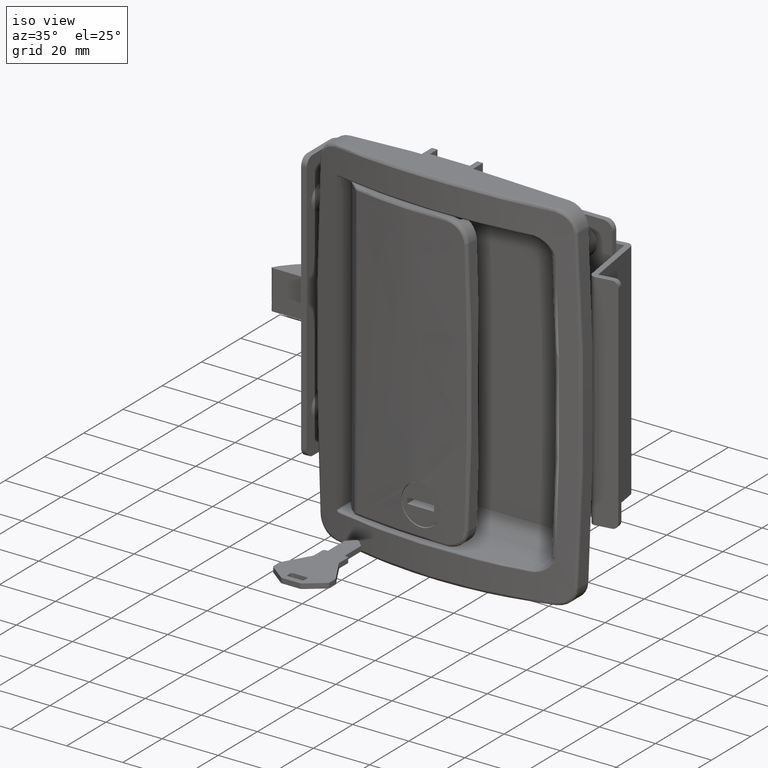
[diagram: clean part render]
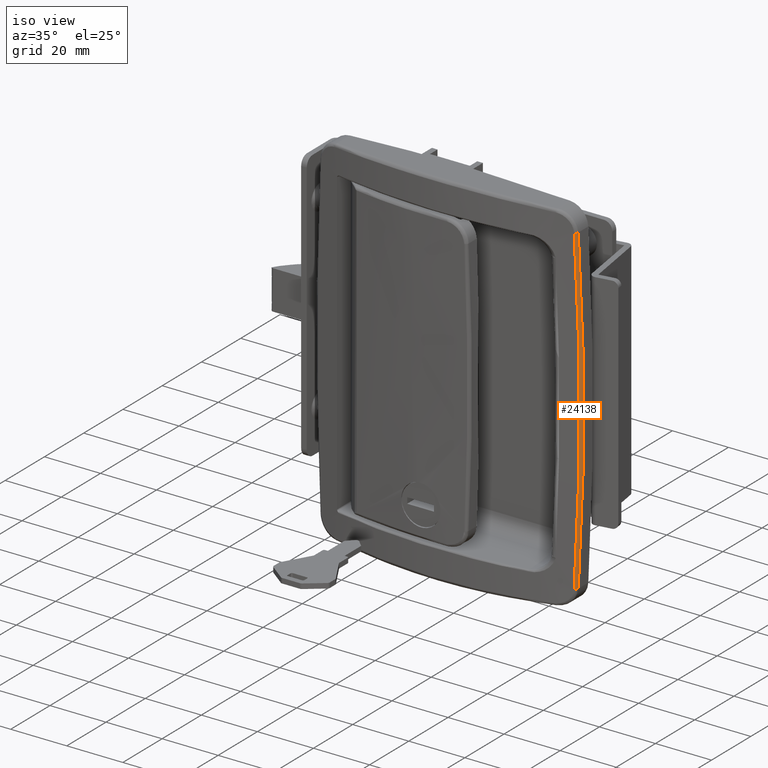
[diagram: same view with one face highlighted and labeled with its STEP entity id]
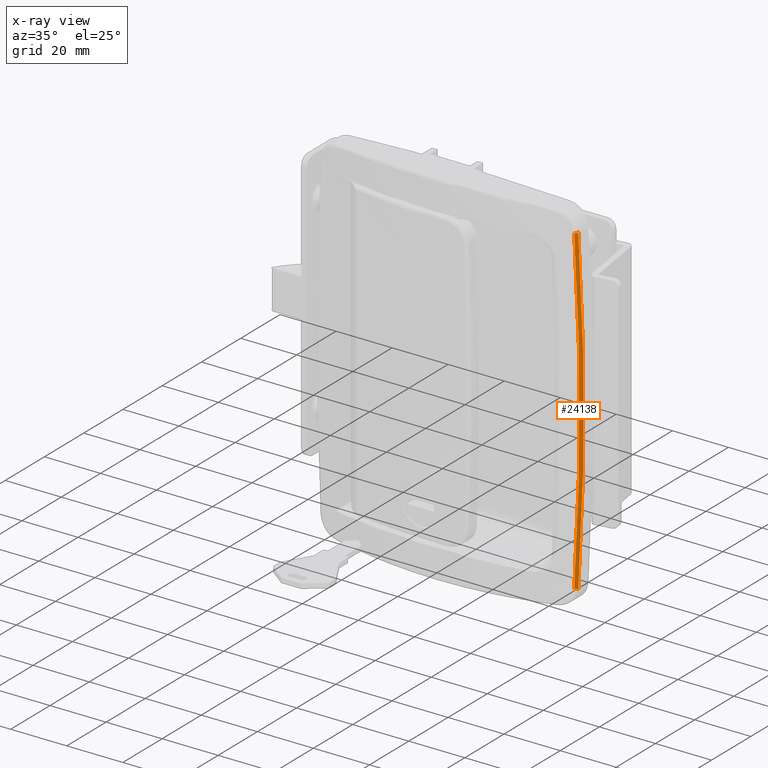
[diagram: x-ray of the same camera — body ghosted, the highlighted face saturated]
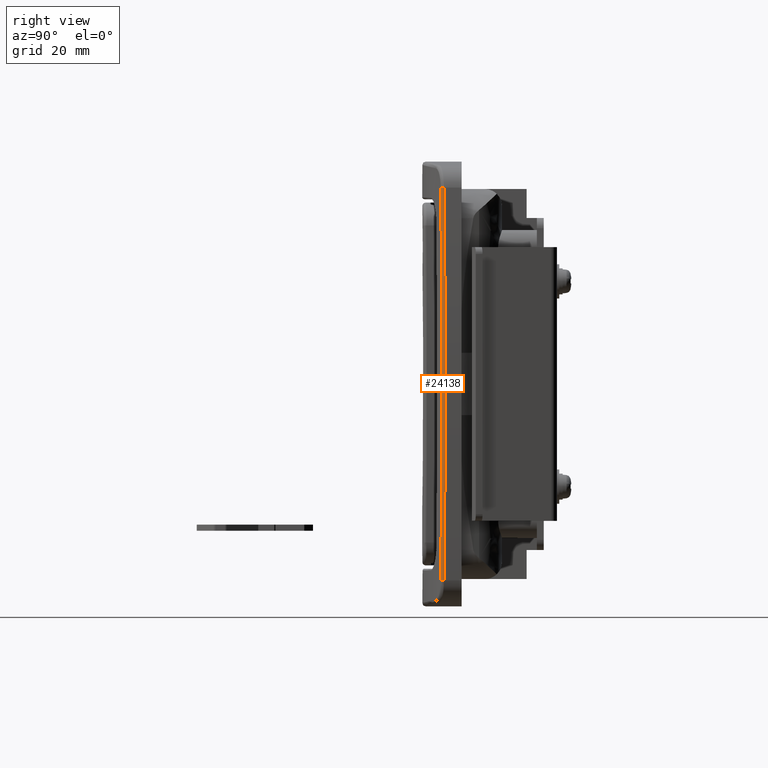
[diagram: same view with one face highlighted and labeled with its STEP entity id]
A machine part, iso view. The second image highlights one B-rep face of the part: STEP entity #24138.
The next image is the same camera in x-ray: the body ghosted, the highlighted face saturated — about 0% of this face is hidden behind the body in this view.
A second angle (right view) of the same face is appended — the face is thin or edge-on in the first view.
In plain terms, the highlighted face is a freeform B-spline surface patch.
Its self-contained STEP definition (entity closure, byte-faithful):
#23844=CARTESIAN_POINT('',(92.589841533773708,-5.102077315700139,57.327200999655702));
#23845=VERTEX_POINT('',#23844);
#23846=CARTESIAN_POINT('',(93.352146958775407,-4.130335608736100,57.384585585241012));
#23847=VERTEX_POINT('',#23846);
#23848=CARTESIAN_POINT('',(92.589841533773708,-5.102077315700139,57.327200999655702));
#23849=CARTESIAN_POINT('',(92.738106249284328,-5.066336422271850,57.336222179149573));
#23850=CARTESIAN_POINT('',(92.979141792422311,-4.944038598098099,57.351784299607402));
#23851=CARTESIAN_POINT('',(93.271507100608133,-4.601890599640898,57.373366444998432));
#23852=CARTESIAN_POINT('',(93.352763812862236,-4.310933547501303,57.382099469351623));
#23853=CARTESIAN_POINT('',(93.352146958775407,-4.130335608736100,57.384585585241012));
#23854=B_SPLINE_CURVE_WITH_KNOTS('',3,(#23848,#23849,#23850,#23851,#23852,#23853),.UNSPECIFIED.,.F.,.U.,(4,1,1,4),(0.000000606098864,0.458247604693604,0.791453894513084,1.332997292014657),.UNSPECIFIED.);
#23855=EDGE_CURVE('',#23845,#23847,#23854,.T.);
#24044=CARTESIAN_POINT('',(92.550730393208298,-5.111576706780928,57.900093716901353));
#24045=CARTESIAN_POINT('',(92.561771986878853,-5.108894960558557,57.709008086178713));
#24046=CARTESIAN_POINT('',(92.572813584776668,-5.106213213309484,57.517922382299261));
#24047=CARTESIAN_POINT('',(93.688036772157034,-4.835351446512850,38.217889025215577));
#24048=CARTESIAN_POINT('',(94.238761806418267,-4.693763688061156,19.108945974016223));
#24049=CARTESIAN_POINT('',(94.238761806422232,-4.693763688060288,-19.108945974276683));
#24050=CARTESIAN_POINT('',(93.688036769249166,-4.835351447225407,-38.217889025298049));
#24051=CARTESIAN_POINT('',(92.572813584807932,-5.106213213301824,-57.517922382562084));
#24052=CARTESIAN_POINT('',(92.561771986939178,-5.108894960543773,-57.709008086443880));
#24053=CARTESIAN_POINT('',(92.550730393297712,-5.111576706759021,-57.900093717168858));
#24054=CARTESIAN_POINT('',(92.553720418474271,-5.110850963265343,57.900283202382525));
#24055=CARTESIAN_POINT('',(92.564761996911017,-5.108169031934798,57.709195040759610));
#24056=CARTESIAN_POINT('',(92.575803577463731,-5.105487100090323,57.518106842518755));
#24057=CARTESIAN_POINT('',(93.691014136990589,-4.834609330497239,38.218009771951387));
#24058=CARTESIAN_POINT('',(94.241732770989458,-4.693013865934754,19.109006423076877));
#24059=CARTESIAN_POINT('',(94.241732770993394,-4.693013865933822,-19.109006423337334));
#24060=CARTESIAN_POINT('',(93.691014134081598,-4.834609331206957,-38.218009772033845));
#24061=CARTESIAN_POINT('',(92.575803577494995,-5.105487100082691,-57.518106842781592));
#24062=CARTESIAN_POINT('',(92.564761996971441,-5.108169031920077,-57.709195041024849));
#24063=CARTESIAN_POINT('',(92.553720418563714,-5.110850963243521,-57.900283202650044));
#24064=CARTESIAN_POINT('',(93.319721106633835,-4.924926102129839,57.948826607895427));
#24065=CARTESIAN_POINT('',(93.330739947449871,-4.922201321634780,57.757088889008969));
#24066=CARTESIAN_POINT('',(93.341758250616948,-4.919476674091579,57.565360525696647));
#24067=CARTESIAN_POINT('',(94.451844407395825,-4.644970384516872,38.248865168180615));
#24068=CARTESIAN_POINT('',(94.999999999999957,-4.501639807979108,19.124434591481236));
#24069=CARTESIAN_POINT('',(94.999999999999957,-4.501639807962532,-19.124434591741664));
#24070=CARTESIAN_POINT('',(94.451844404205389,-4.644970384500883,-38.248865168257943));
#24071=CARTESIAN_POINT('',(93.341758250651097,-4.919476674091186,-57.565360525959505));
#24072=CARTESIAN_POINT('',(93.330739947515980,-4.922201321634549,-57.757088889274236));
#24073=CARTESIAN_POINT('',(93.319721106731933,-4.924926102129770,-57.948826608163074));
#24074=CARTESIAN_POINT('',(93.319160335619131,-4.135017494093386,57.958472091987460));
#24075=CARTESIAN_POINT('',(93.330154988680178,-4.132349576518281,57.767192038620593));
#24076=CARTESIAN_POINT('',(93.341149644007345,-4.129681658393316,57.575911945830590));
#24077=CARTESIAN_POINT('',(94.451621529006530,-3.860219089435609,38.256419075590493));
#24078=CARTESIAN_POINT('',(94.999999999999588,-3.719363635378281,19.128211138326115));
#24079=CARTESIAN_POINT('',(95.000000000000284,-3.719363635361705,-19.128211138586540));
#24080=CARTESIAN_POINT('',(94.451621529021253,-3.860219089096391,-38.256419075856556));
#24081=CARTESIAN_POINT('',(93.341149644009377,-4.129681658396176,-57.575911946091551));
#24082=CARTESIAN_POINT('',(93.330154988682054,-4.132349576524534,-57.767192038882058));
#24083=CARTESIAN_POINT('',(93.319160335620850,-4.135017494103035,-57.958472092249416));
#24084=CARTESIAN_POINT('',(93.319157982445660,-4.131702786505672,57.958512567504421));
#24085=CARTESIAN_POINT('',(93.330152533946929,-4.129035025996720,57.767234435690739));
#24086=CARTESIAN_POINT('',(93.341147089974896,-4.126367264389365,57.575956225121963));
#24087=CARTESIAN_POINT('',(94.451620591367686,-3.856917678116596,38.256450854519123));
#24088=CARTESIAN_POINT('',(94.999999999999616,-3.716068608781841,19.128227045524547));
#24089=CARTESIAN_POINT('',(95.000000000000327,-3.716068608765267,-19.128227045784971));
#24090=CARTESIAN_POINT('',(94.451620591395894,-3.856917677776020,-38.256450854785982));
#24091=CARTESIAN_POINT('',(93.341147089976786,-4.126367264392239,-57.575956225382910));
#24092=CARTESIAN_POINT('',(93.330152533948521,-4.129035026003002,-57.767234435952190));
#24093=CARTESIAN_POINT('',(93.319157982447067,-4.131702786515366,-57.958512567766441));
#24101=(BOUNDED_SURFACE()B_SPLINE_SURFACE(3,2,((#24044,#24054,#24064,#24074,#24084),(#24045,#24055,#24065,#24075,#24085),(#24046,#24056,#24066,#24076,#24086),(#24047,#24057,#24067,#24077,#24087),(#24048,#24058,#24068,#24078,#24088),(#24049,#24059,#24069,#24079,#24089),(#24050,#24060,#24070,#24080,#24090),(#24051,#24061,#24071,#24081,#24091),(#24052,#24062,#24072,#24082,#24092),(#24053,#24063,#24073,#24083,#24093)),.UNSPECIFIED.,.F.,.F.,.U.)B_SPLINE_SURFACE_WITH_KNOTS((4,2,2,2,4),(3,1,1,3),(0.0,0.575300552469196,58.105357084909578,115.635413617350000,116.210714169820800),(0.0,0.006926391238676,1.391665041850950,1.399115161763047),.UNSPECIFIED.)GEOMETRIC_REPRESENTATION_ITEM()RATIONAL_B_SPLINE_SURFACE(((1.002141200192662,1.001070600096331,0.785963385310851,1.001151551915091,1.002303103830183),(1.002141008358655,1.001070504179328,0.785982561239192,1.001151448745468,1.002302897490935),(1.002140816524648,1.001070408262324,0.786001737167533,1.001151345575844,1.002302691151688),(1.002121441289504,1.001060720644752,0.787938505972799,1.001140925443615,1.002281850887231),(1.002111874626181,1.001055937313091,0.788894799661977,1.001135780427513,1.002271560855025),(1.002111874626181,1.001055937313091,0.788894799661977,1.001135780427513,1.002271560855025),(1.002121441289504,1.001060720644752,0.787938505972795,1.001140925443615,1.002281850887231),(1.002140816524648,1.001070408262324,0.786001737167542,1.001151345575844,1.002302691151688),(1.002141008358655,1.001070504179327,0.785982561239201,1.001151448745468,1.002302897490935),(1.002141200192662,1.001070600096331,0.785963385310860,1.001151551915091,1.002303103830182)))REPRESENTATION_ITEM('')SURFACE());
#24102=CARTESIAN_POINT('',(92.589841533775498,-5.102077315699700,-57.327200999916101));
#24103=VERTEX_POINT('',#24102);
#24104=CARTESIAN_POINT('',(93.352146958777709,-4.130335608735545,-57.384585585501512));
#24105=VERTEX_POINT('',#24104);
#24106=CARTESIAN_POINT('',(92.589841533775498,-5.102077315699700,-57.327200999916101));
#24107=CARTESIAN_POINT('',(92.724537699484429,-5.069476940391657,-57.335398419600672));
#24108=CARTESIAN_POINT('',(93.005709915106664,-4.934771375853180,-57.353440809273749));
#24109=CARTESIAN_POINT('',(93.288143404837470,-4.574632227558168,-57.374703279453243));
#24110=CARTESIAN_POINT('',(93.352378546417015,-4.269160335553100,-57.382660577110400));
#24111=CARTESIAN_POINT('',(93.352146958777709,-4.130335608735545,-57.384585585501512));
#24112=B_SPLINE_CURVE_WITH_KNOTS('',3,(#24106,#24107,#24108,#24109,#24110,#24111),.UNSPECIFIED.,.F.,.U.,(4,1,1,4),(0.000000606097600,0.416572633531981,0.916428127403948,1.332997292015248),.UNSPECIFIED.);
#24113=EDGE_CURVE('',#24103,#24105,#24112,.T.);
#24114=ORIENTED_EDGE('',*,*,#24113,.T.);
#24115=CARTESIAN_POINT('',(93.352146958775506,-4.130335608736075,57.384585585241012));
#24116=CARTESIAN_POINT('',(93.901884622791357,-3.996931836082747,47.820487987679151));
#24117=CARTESIAN_POINT('',(94.725640659295323,-3.792165913777707,28.692292792555399));
#24118=CARTESIAN_POINT('',(95.137179670352040,-3.687916263341038,-1.302135E-010));
#24119=CARTESIAN_POINT('',(94.725640378592416,-3.792166506632515,-28.692292792815881));
#24120=CARTESIAN_POINT('',(93.901884622793105,-3.996931836082323,-47.820487987939622));
#24121=CARTESIAN_POINT('',(93.352146958777595,-4.130335608735570,-57.384585585501512));
#24122=B_SPLINE_CURVE_WITH_KNOTS('',3,(#24115,#24116,#24117,#24118,#24119,#24120,#24121),.UNSPECIFIED.,.F.,.U.,(4,1,1,1,4),(0.0,0.250000000000000,0.500000000000000,0.750000000000000,1.0),.UNSPECIFIED.);
#24123=EDGE_CURVE('',#23847,#24105,#24122,.T.);
#24124=ORIENTED_EDGE('',*,*,#24123,.F.);
#24125=ORIENTED_EDGE('',*,*,#23855,.F.);
#24126=CARTESIAN_POINT('',(92.589841533775498,-5.102077315699700,-57.327200999916101));
#24127=CARTESIAN_POINT('',(93.141919605995284,-4.967971494906189,-47.772667499951787));
#24128=CARTESIAN_POINT('',(93.969182634128273,-4.762127975378308,-28.663600500023129));
#24129=CARTESIAN_POINT('',(94.382473697737325,-4.657329702727048,-1.301820E-010));
#24130=CARTESIAN_POINT('',(93.969182352227961,-4.762128571353602,28.663600499762872));
#24131=CARTESIAN_POINT('',(93.141919605993621,-4.967971494906577,47.772667499691302));
#24132=CARTESIAN_POINT('',(92.589841533773708,-5.102077315700139,57.327200999655702));
#24133=B_SPLINE_CURVE_WITH_KNOTS('',3,(#24126,#24127,#24128,#24129,#24130,#24131,#24132),.UNSPECIFIED.,.F.,.U.,(4,1,1,1,4),(0.0,0.250000000000000,0.500000000000000,0.750000000000000,1.0),.UNSPECIFIED.);
#24134=EDGE_CURVE('',#24103,#23845,#24133,.T.);
#24135=ORIENTED_EDGE('',*,*,#24134,.F.);
#24136=EDGE_LOOP('',(#24114,#24124,#24125,#24135));
#24137=FACE_OUTER_BOUND('',#24136,.T.);
#24138=ADVANCED_FACE('',(#24137),#24101,.T.);